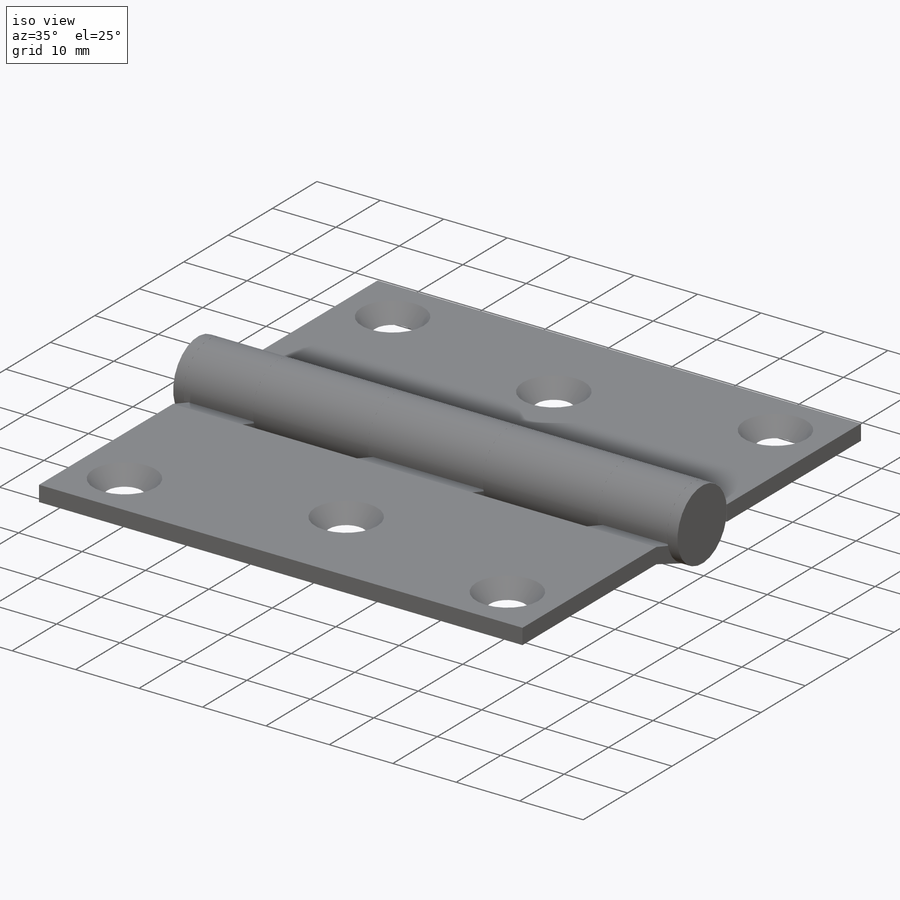
[diagram: iso view]
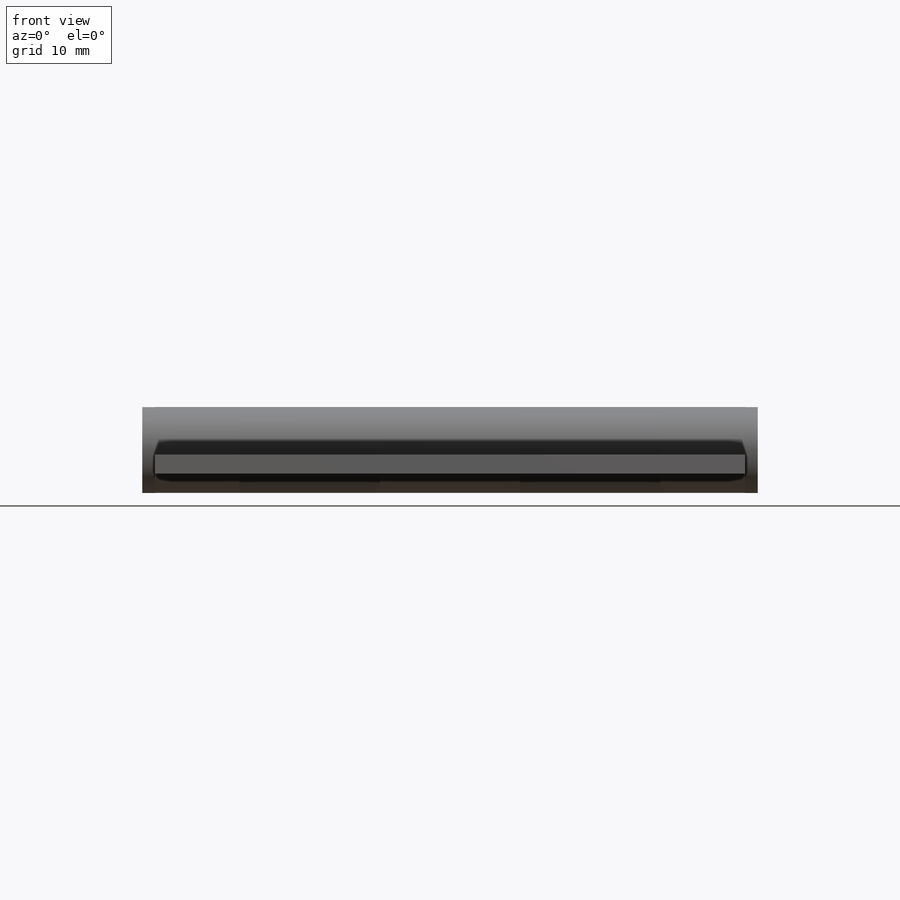
[diagram: front view]
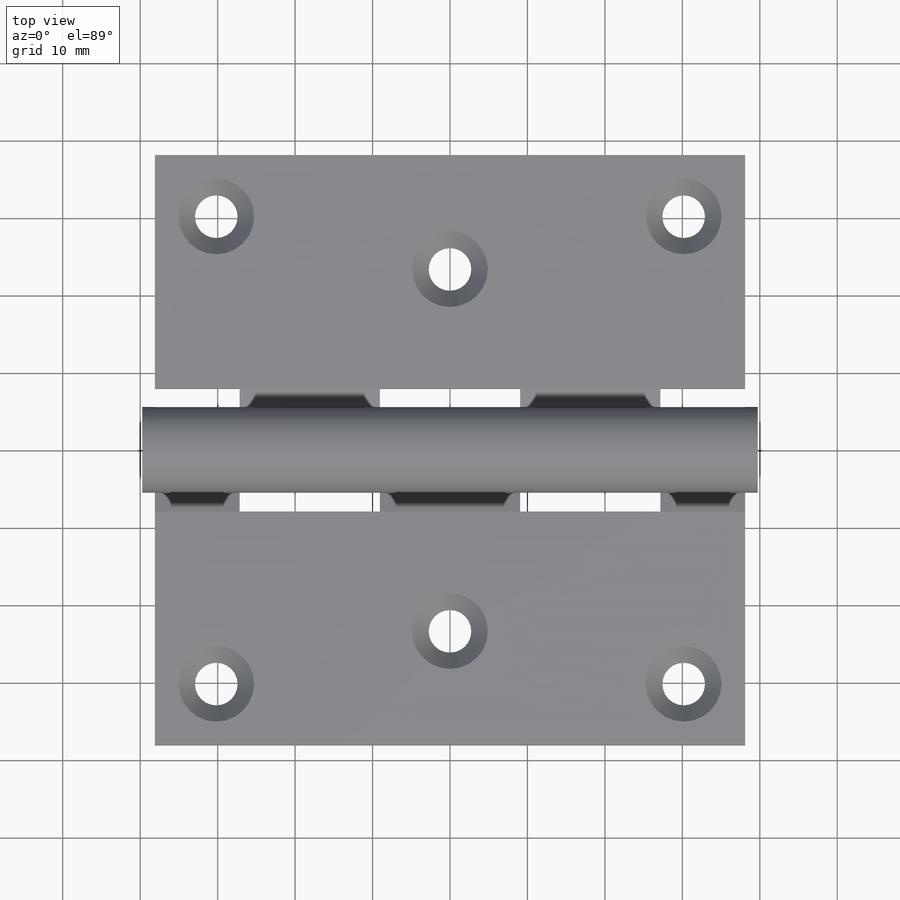
[diagram: top view]
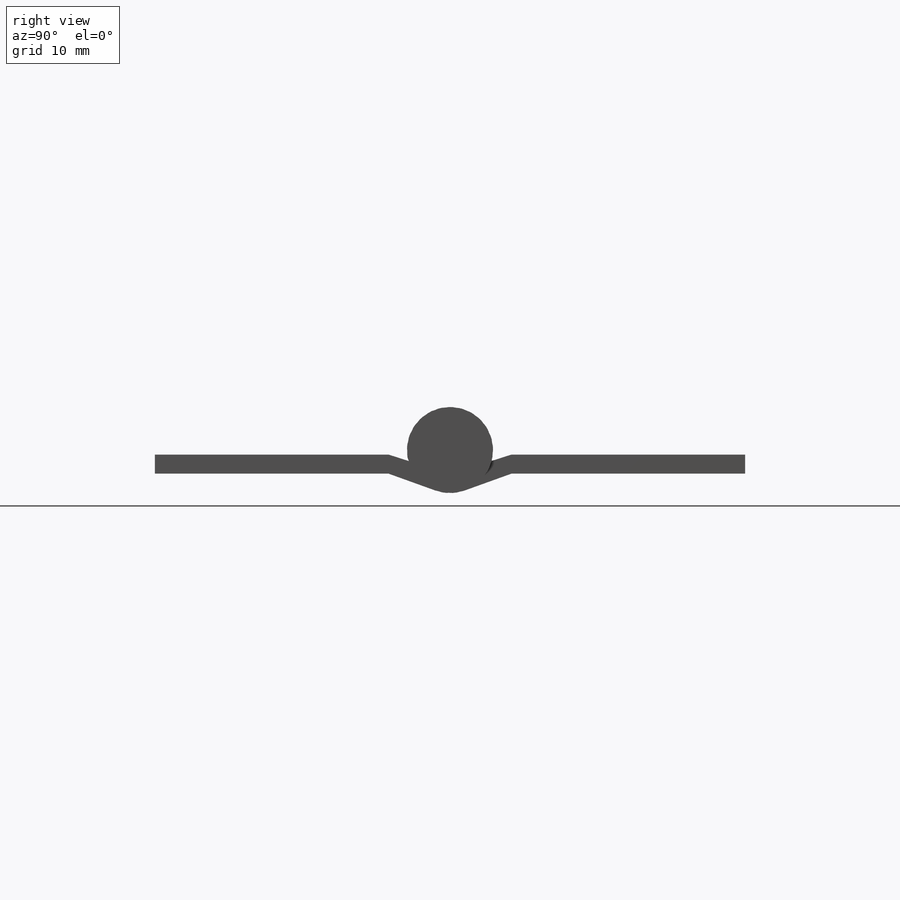
[diagram: right view]
SOLIDWORKS PART (.sldprt)
format: sldprt  version: not decoded by parser v0  size: 481,280 bytes
history: native  units: mm
features: sketch x9, extrude x3, revolve x2, material x1, cut_extrude x1, mirror x1, boolean_combine x1, hole x1 (+11 scaffold rows collapsed)
feature tree (30):
  scaffold x11  (default folders/planes/origin — collapsed)
  material  "Material <not specified>"
  sketch  "Sketch1"  dims[c1.Pin Dia.=~5.953125mm c1.Kn Dia=41.275mm c2.Kn Dia=11.1125mm c2.Th=2.4638mm c2.Open Width / 2=38.1mm c2.D1=0.508mm c2.D3=27.0002mm c3.D1=~11.114872mm c4.D1=~4.097499deg c5.D1=0.508mm c5.D4=12.7mm c5.D5=~11.483243mm c6.D5=35.0deg c6.D1=~63.614024mm c7.D1=45.0deg c7.D2=1.27mm c8.D1=~14.193508mm c9.D1=165.0deg c9.Leaf End=30.1625mm c9.Leaf Top=0.5842mm c9.D3=0.254mm]
  extrude  "Left Leaf"  Depth=76.2mm Leaf Ht=76.2mm
  sketch  "Sketch2"  dims[c1.Center Knuckle=25.908mm c1.End Knuckle=25.654mm c1.Middle Knuckle=24.892mm c2.End Knuckle=9.0932mm c2.Middle Knuckle=10.3632mm c2.Knuckle Lg=~18.10512mm c2.End Dist=14.2875mm]
  cut_extrude  "Cut-Extrude1"  [1 undecoded]
  sketch  "Sketch3"  dims[D1=0.0mm D2=0.0mm]
  extrude  "Right Leaf"  [1 undecoded]
  mirror  "Mirror1"
  sketch  "Sketch4"  dims[D1=0.0mm]
  extrude  "Extrude3"  [1 undecoded]
  boolean_combine  "Combine1"
  sketch  "Sketch6"  dims[D1=~5.953125mm]
  revolve  "Pin"  Angle=360deg
  sketch  "Sketch7"  dims[c1.D1=0.254mm c1.D2=~3.768725mm c1.D3=~2.455333mm c2.D1=~1.642533mm]
  revolve  "Spun Pin"  Angle=360deg
  sketch  "Sketch8"  dims[c1.D1=57.15mm c1.D2=57.15mm c1.D3=107.95mm c1.D4=19.05mm c1.Hole Dist=37.6936mm c1.Hole Dist2=7.9248mm c1.Hole Dist3=31.75mm c1.Hole Dist4=25.4mm c2.Hole Dist3=14.732mm c2.Hole Dist=30.1752mm]
  hole  "CSK for #10 Flat Head Machine Screw1"  Diameter=5.1054mm Depth=4.97205mm
  sketch  "3DSketch1"
  sketch  "Sketch9"  dims[hole-wizard template sketch: 55 standard entries collapsed; hole parameters kept: c17.Thru Hole Depth=~4.97205mm c17.Near C'Sink Dia.=9.779mm c17.D4=~3.666174mm c17.Near C'Sink Angle=82.0deg]
decode coverage: 12 of 18 modeling features carry decoded parameters
note: ~ marks probable driven/reference dimensions
note: 3 parameter values undecoded
summary: no parameter record found for 3 features
note: suppression state not decoded; provenance and decode notes live in map.json
